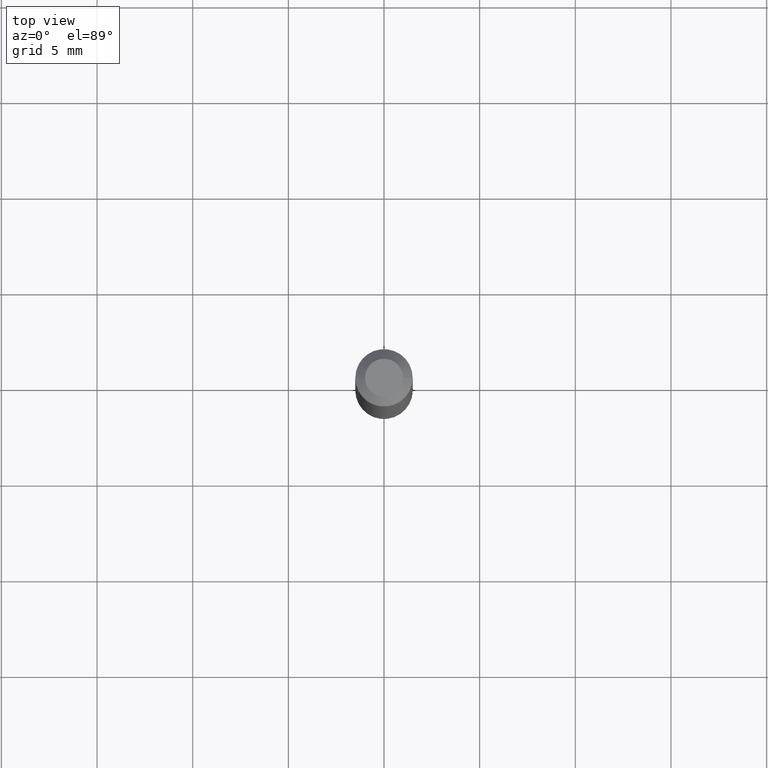
[diagram: clean part render]
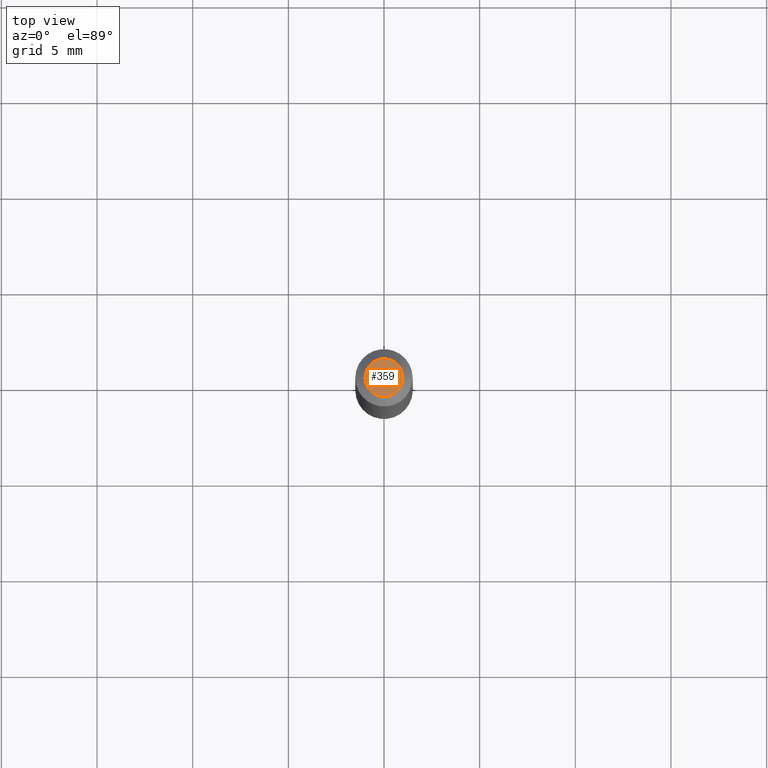
[diagram: same view with one face highlighted and labeled with its STEP entity id]
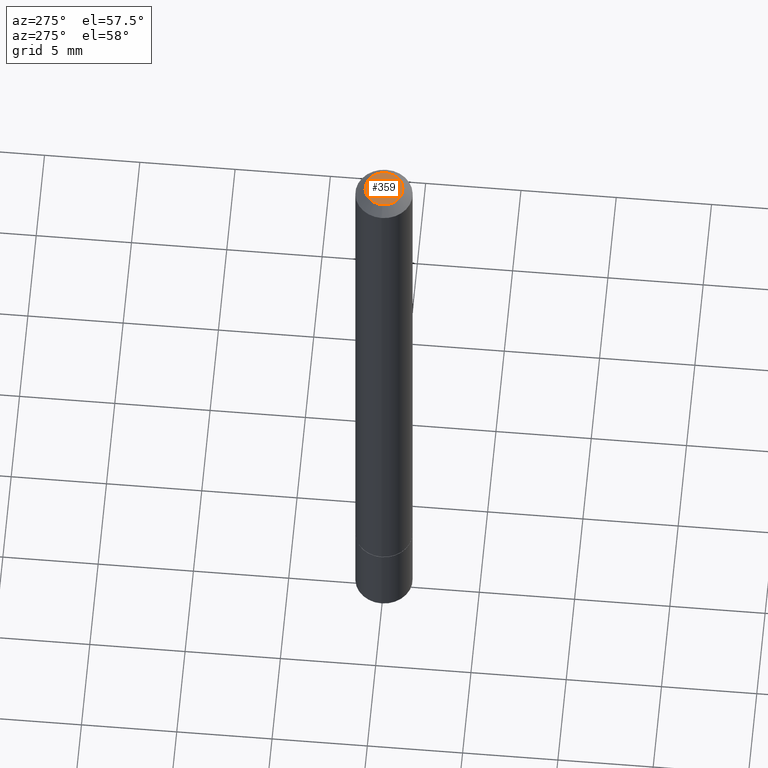
[diagram: same view with one face highlighted and labeled with its STEP entity id]
A machine part, top view. The second image highlights one B-rep face of the part: STEP entity #359.
A second angle (auxiliary view) of the same face is appended — the face is thin or edge-on in the first view.
In plain terms, the highlighted planar face has unit normal (0, -0, -1).
Its self-contained STEP definition (entity closure, byte-faithful):
#17 = CARTESIAN_POINT ( 'NONE',  ( 1.043851414335219781E-45, -1.490343170380447145E-31, -4.268512490100411279E-17 ) ) ;
#27 = DIRECTION ( 'NONE',  ( 1.000000000000000000, -6.982962677686266711E-15, 4.873707401586867728E-29 ) ) ;
#34 = EDGE_CURVE ( 'NONE', #257, #307, #52, .T. ) ;
#42 = ORIENTED_EDGE ( 'NONE', *, *, #34, .T. ) ;
#52 = CIRCLE ( 'NONE', #127, 0.03904999999999995974 ) ;
#81 = CARTESIAN_POINT ( 'NONE',  ( 2.726846925636483731E-16, 0.03904999999999995974, -1.576849087323267144E-16 ) ) ;
#89 = EDGE_LOOP ( 'NONE', ( #42, #245 ) ) ;
#127 = AXIS2_PLACEMENT_3D ( 'NONE', #17, #218, #258 ) ;
#138 = EDGE_CURVE ( 'NONE', #307, #257, #305, .T. ) ;
#196 = DIRECTION ( 'NONE',  ( 2.438088387897960049E-29, -3.491481338843145188E-15, -1.000000000000000000 ) ) ;
#218 = DIRECTION ( 'NONE',  ( -2.445468806185136597E-29, 3.491481338843145583E-15, 1.000000000000000000 ) ) ;
#227 = FACE_OUTER_BOUND ( 'NONE', #89, .T. ) ;
#240 = AXIS2_PLACEMENT_3D ( 'NONE', #81, #196, #330 ) ;
#245 = ORIENTED_EDGE ( 'NONE', *, *, #138, .T. ) ;
#257 = VERTEX_POINT ( 'NONE', #324 ) ;
#258 = DIRECTION ( 'NONE',  ( 1.000000000000000000, -6.982962677686266711E-15, 4.873707401586867728E-29 ) ) ;
#272 = CARTESIAN_POINT ( 'NONE',  ( 1.043851414335219781E-45, -1.490343170380447145E-31, -4.268512490100411279E-17 ) ) ;
#280 = CARTESIAN_POINT ( 'NONE',  ( 0.03904999999999995974, -3.714222401791248901E-16, -4.268512490100186330E-17 ) ) ;
#305 = CIRCLE ( 'NONE', #315, 0.03904999999999995974 ) ;
#307 = VERTEX_POINT ( 'NONE', #280 ) ;
#315 = AXIS2_PLACEMENT_3D ( 'NONE', #272, #365, #27 ) ;
#324 = CARTESIAN_POINT ( 'NONE',  ( -0.03904999999999995974, 3.075995059520794305E-16, -4.268512490100614657E-17 ) ) ;
#330 = DIRECTION ( 'NONE',  ( -1.000000000000000000, 6.982962677686265922E-15, -4.876176775795935793E-29 ) ) ;
#332 = PLANE ( 'NONE',  #240 ) ;
#359 = ADVANCED_FACE ( 'NONE', ( #227 ), #332, .F. ) ;
#365 = DIRECTION ( 'NONE',  ( -2.445468806185136597E-29, 3.491481338843145583E-15, 1.000000000000000000 ) ) ;